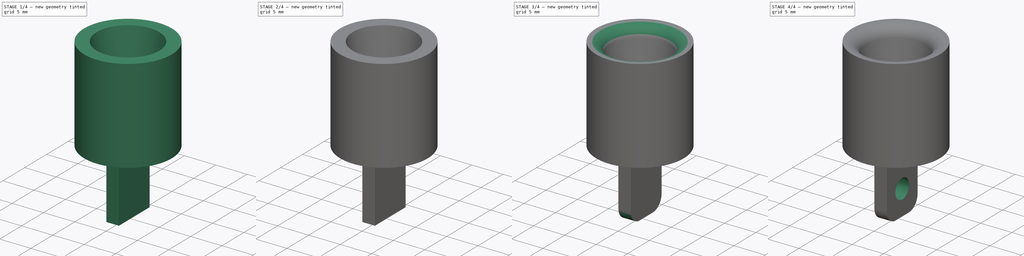
[diagram: build sequence overview — one tinted view per stage of 4, left to right]
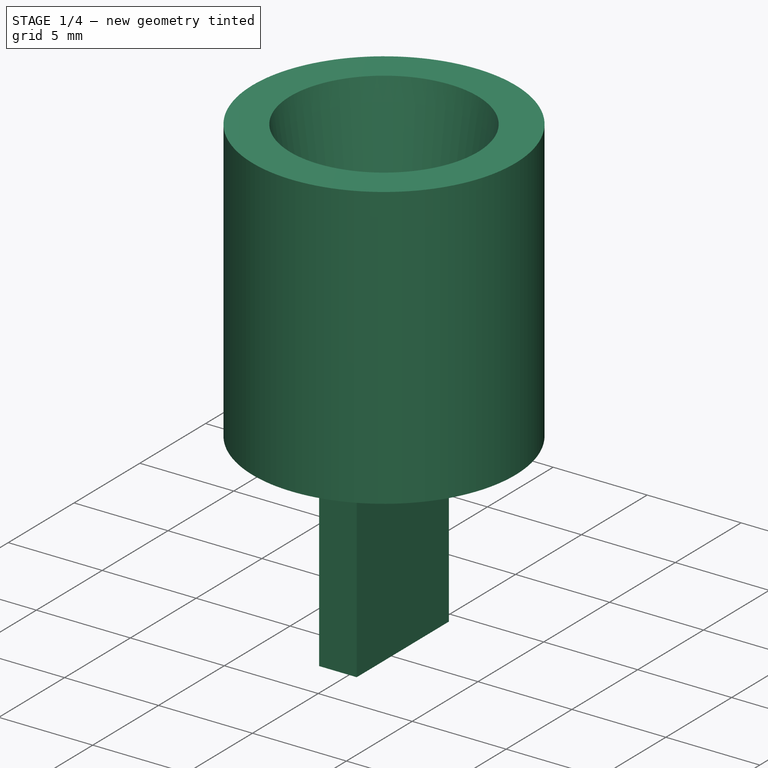
[diagram: stage 1 of 4 — iso view after this stage's code; geometry added in this stage tinted green]
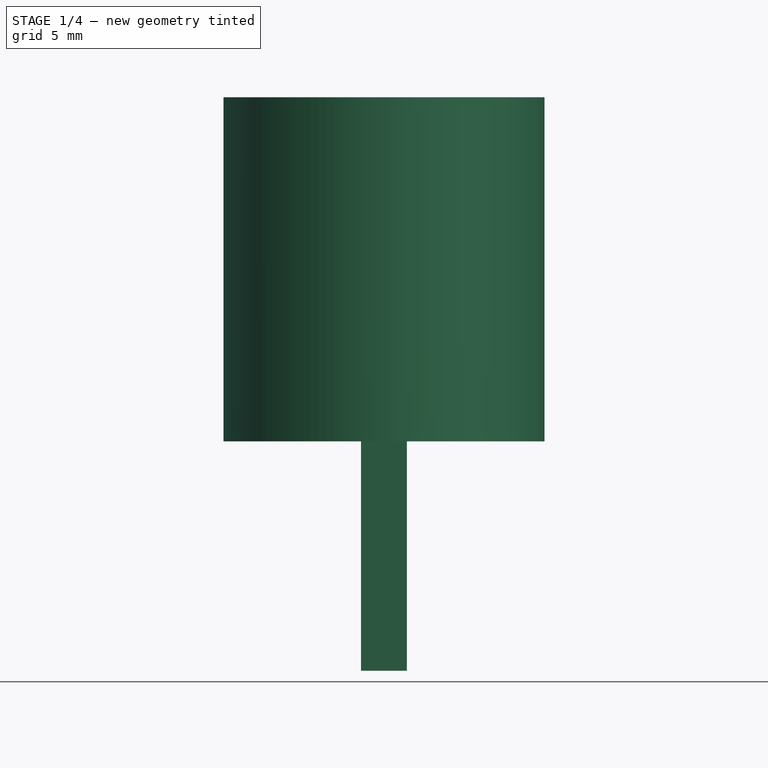
[diagram: stage 1 of 4 — front view after this stage's code; geometry added in this stage tinted green]
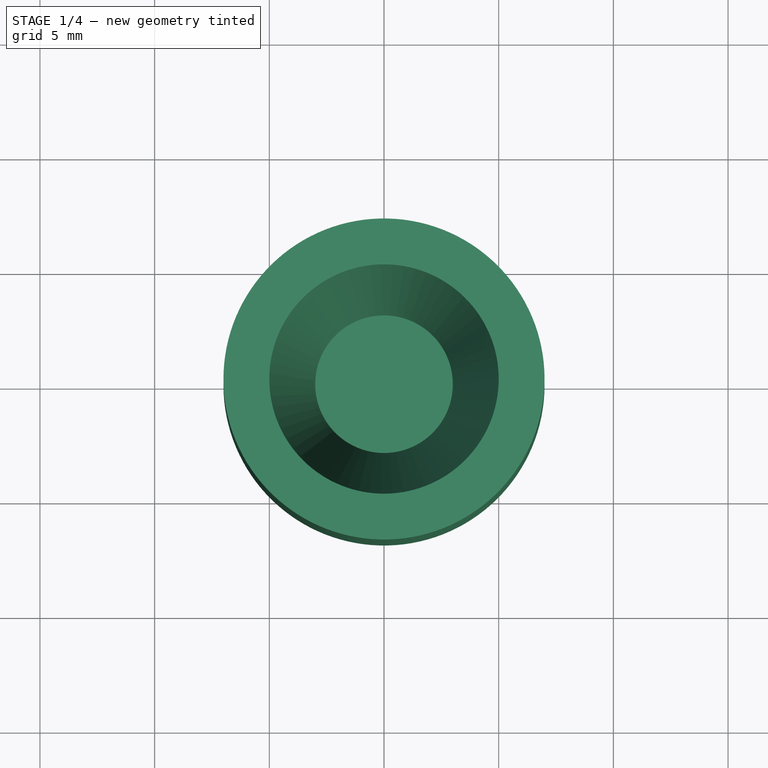
[diagram: stage 1 of 4 — top view after this stage's code; geometry added in this stage tinted green]
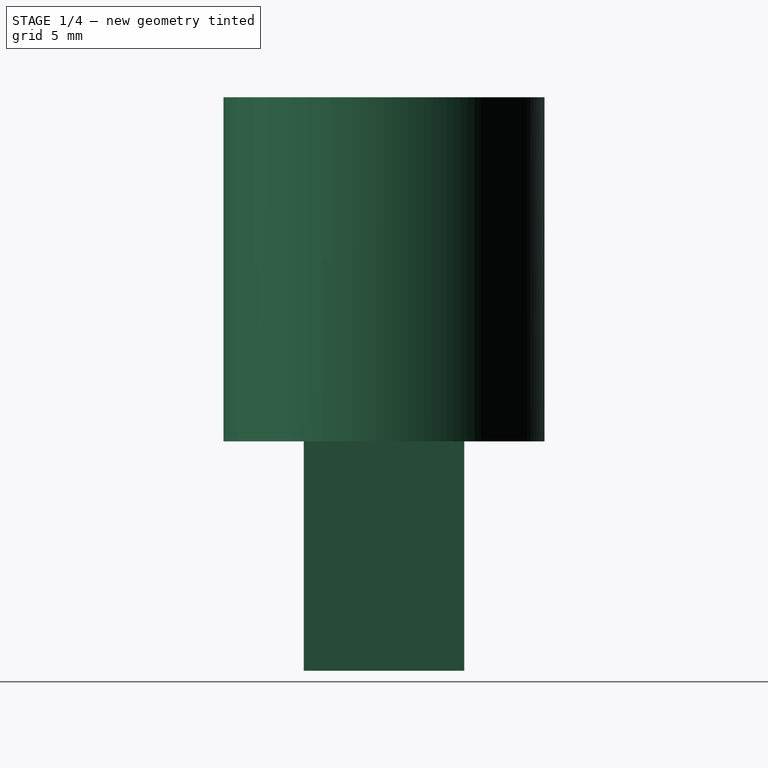
[diagram: stage 1 of 4 — right view after this stage's code; geometry added in this stage tinted green]
FCSTD DOCUMENT  (FreeCAD 0.19R24344 (Git))
Label: Lamp_shade
Comment: Shade to house a 5mm LED and shield any light dissemination outside the main cone.
License: Creative Commons Attribution-NonCommercial-ShareAlike
LicenseURL: http://creativecommons.org/licenses/by-nc-sa/4.0/
objects: PartDesign::Fillet×5, Sketcher::SketchObject×4, PartDesign::Pocket×2, PartDesign::Revolution×1, PartDesign::Pad×1, PartDesign::CoordinateSystem×1, PartDesign::Body×1
note: 24 computed .brp shape members not serialized (recipe doc carries the construction recipe); baked Part::Feature solids carry a one-line shape summary decoded from their .brp

FEATURE [Sketcher::SketchObject] Sketch
  FullyConstrained = true
  MapMode = 5
  Placement = pos=(0,0,0) rot=(1,0,0;1.5708rad)
  Support = -> [XZ_Plane]
  sketch-geometry (6):
    g0: LineSegment StartX=0 StartY=0 StartZ=0 EndX=0 EndY=2 EndZ=0
    g1: LineSegment StartX=0 StartY=2 StartZ=0 EndX=3 EndY=2 EndZ=0
    g2: LineSegment StartX=3 StartY=2 StartZ=0 EndX=5 EndY=15 EndZ=0
    g3: LineSegment StartX=5 StartY=15 StartZ=0 EndX=7 EndY=15 EndZ=0
    g4: LineSegment StartX=7 StartY=15 StartZ=0 EndX=7 EndY=0 EndZ=0
    g5: LineSegment StartX=7 StartY=0 StartZ=0 EndX=0 EndY=0 EndZ=0
  constraints (17):
    c: Coincident(g-1,g0)
    c: PointOnObject(g0,g-2)
    c: Coincident(g0,g1)
    c: Horizontal(g1)
    c: Coincident(g1,g2)
    c: Coincident(g2,g3)
    c: Horizontal(g3)
    c: Coincident(g3,g4)
    c: PointOnObject(g4,g-1)
    c: Vertical(g4)
    c: Coincident(g4,g5)
    c: Coincident(g5,g0)
    c: Distance(g1) = 3
    c: Distance(g4) = 15
    c: Distance(g5) = 7
    c: Distance(g0) = 2
    c: Distance(g3) = 2
FEATURE [PartDesign::Revolution] Revolution
  Angle = 360
  Axis = (0,2e-16,1)
  Base = (0,0,0)
  Placement = pos=(0,0,0) rot=(1,0,0;1.5708rad)
  Profile = -> Sketch
  ReferenceAxis = -> Sketch [V_Axis]
  Reversed = true
FEATURE [Sketcher::SketchObject] Sketch001
  FullyConstrained = true
  MapMode = 5
  Placement = pos=(0,0,0) rot=(1,0,0;3.14159rad)
  Support = -> [Revolution]
  sketch-geometry (4):
    g0: LineSegment StartX=-1 StartY=3.5 StartZ=0 EndX=1 EndY=3.5 EndZ=0
    g1: LineSegment StartX=1 StartY=3.5 StartZ=0 EndX=1 EndY=-3.5 EndZ=0
    g2: LineSegment StartX=1 StartY=-3.5 StartZ=0 EndX=-1 EndY=-3.5 EndZ=0
    g3: LineSegment StartX=-1 StartY=-3.5 StartZ=0 EndX=-1 EndY=3.5 EndZ=0
  constraints (10):
    c: Coincident(g0,g1)
    c: Coincident(g1,g2)
    c: Coincident(g2,g3)
    c: Coincident(g3,g0)
    c: Horizontal(g0)
    c: Vertical(g1)
    c: Distance(g0) = 2
    c: Distance(g3) = 7
    c: Symmetric(g0,g2,g-1)
    c: Symmetric(g1,g2,g-2)
FEATURE [PartDesign::Pad] Pad
  BaseFeature = -> Revolution
  Direction = (1,1,1)
  Length = 10
  Length2 = 100
  Placement = pos=(0,0,0) rot=(1,0,0;1.5708rad)
  Profile = -> Sketch001
  Type = 0
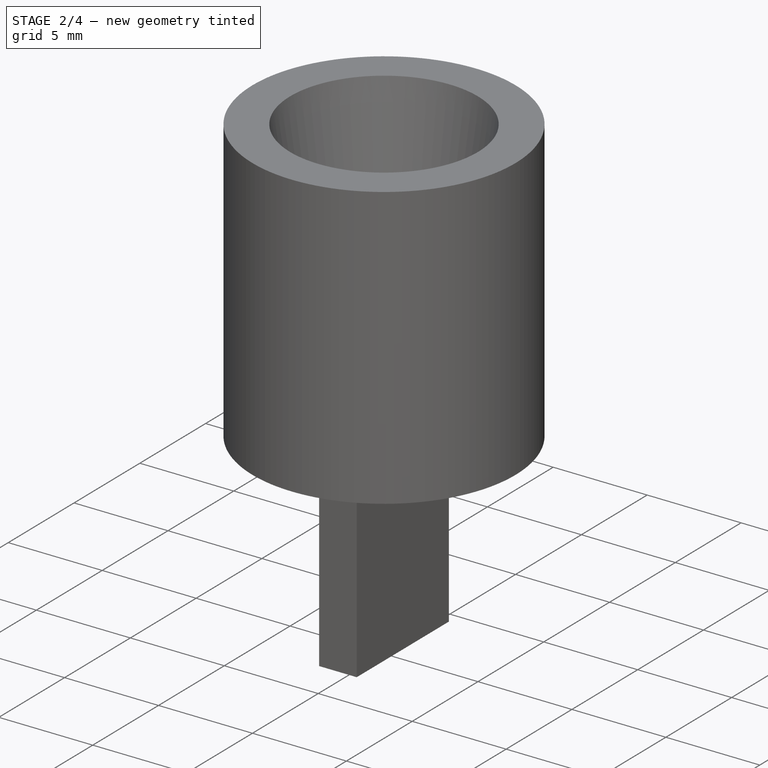
[diagram: stage 2 of 4 — iso view after this stage's code; geometry added in this stage tinted green]
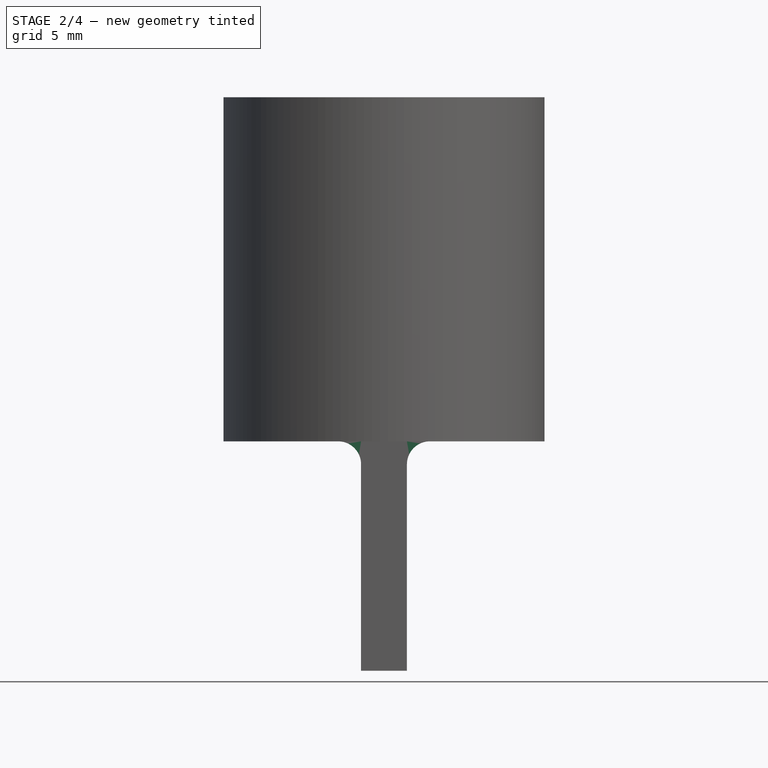
[diagram: stage 2 of 4 — front view after this stage's code; geometry added in this stage tinted green]
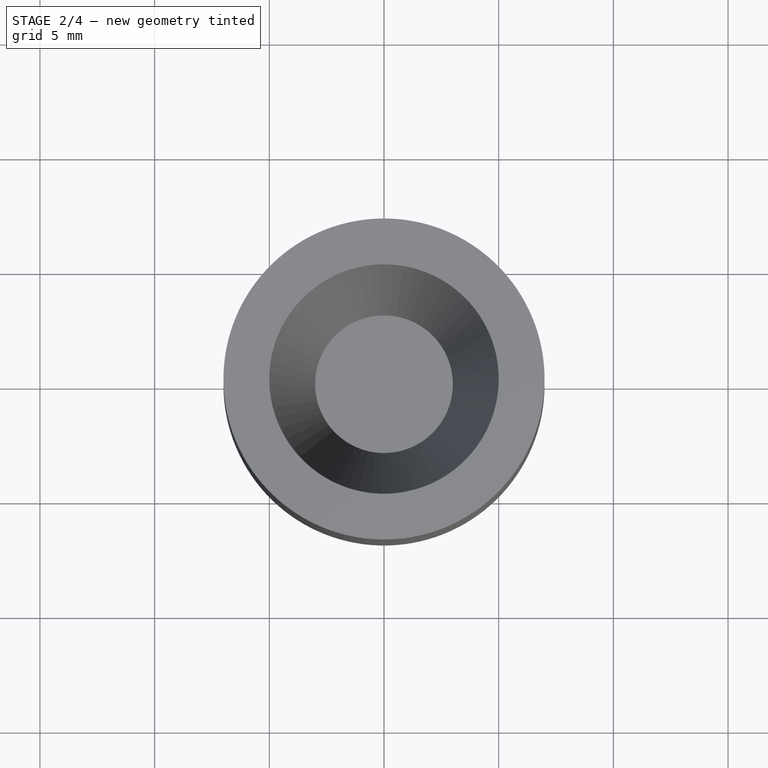
[diagram: stage 2 of 4 — top view after this stage's code; geometry added in this stage tinted green]
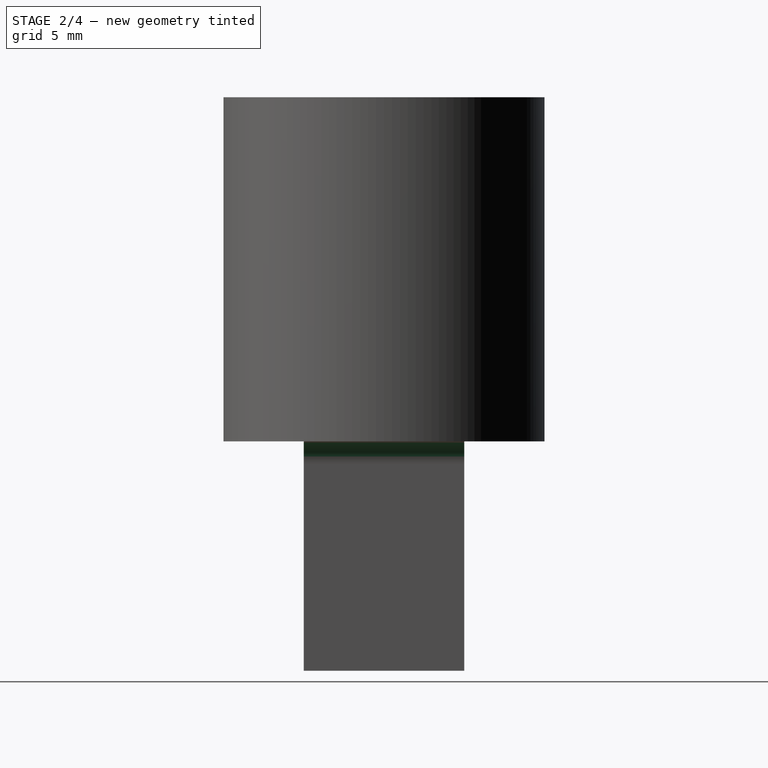
[diagram: stage 2 of 4 — right view after this stage's code; geometry added in this stage tinted green]
FEATURE [PartDesign::Fillet] Fillet
  Base = -> Pad [Edge9]
  BaseFeature = -> Pad
  Placement = pos=(0,0,0) rot=(1,0,0;1.5708rad)
  Radius = 1
  SupportTransform = false
FEATURE [PartDesign::Fillet] Fillet001
  Base = -> Fillet [Edge4]
  BaseFeature = -> Fillet
  Placement = pos=(0,0,0) rot=(1,0,0;1.5708rad)
  Radius = 1
  SupportTransform = false
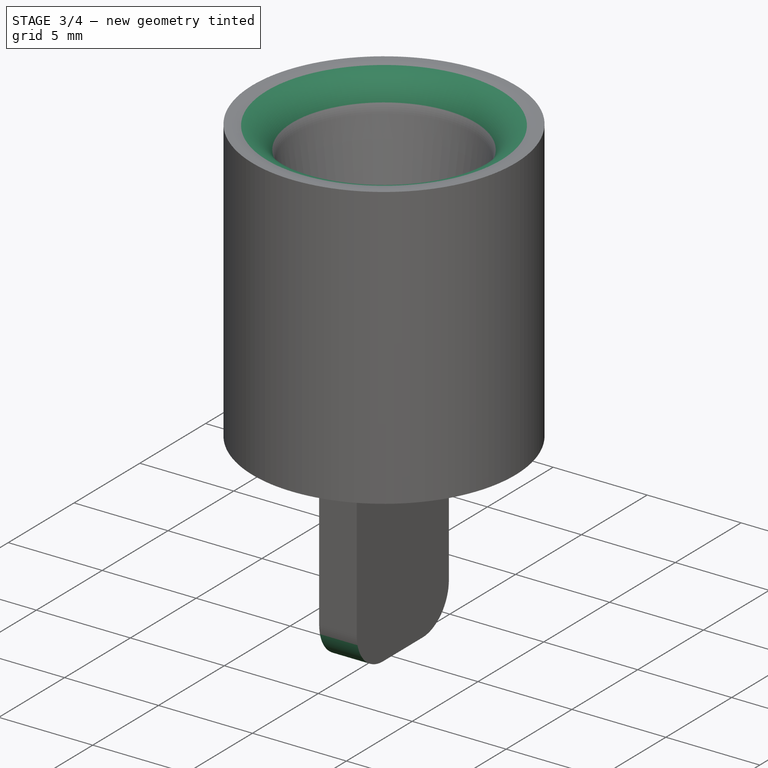
[diagram: stage 3 of 4 — iso view after this stage's code; geometry added in this stage tinted green]
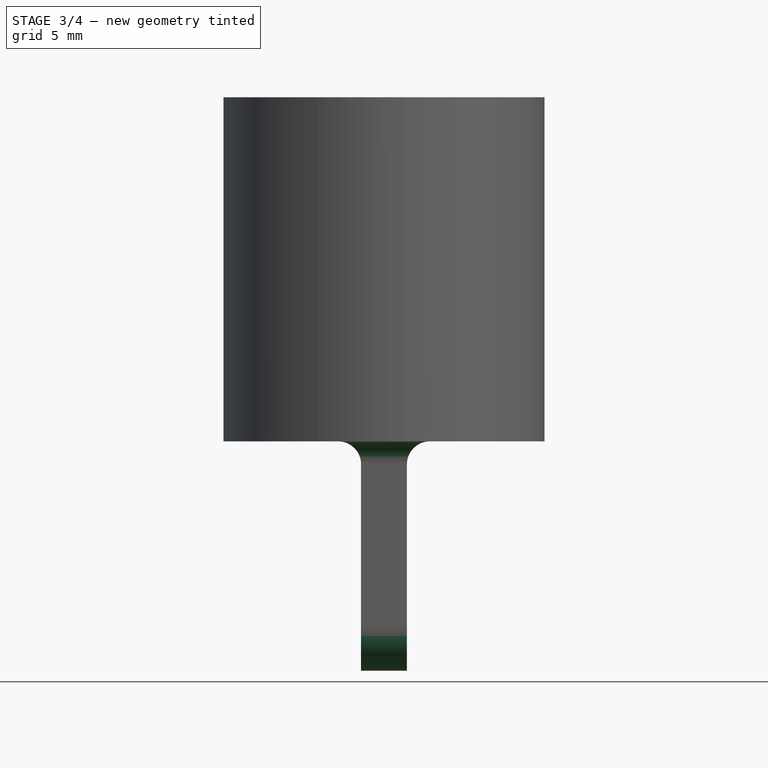
[diagram: stage 3 of 4 — front view after this stage's code; geometry added in this stage tinted green]
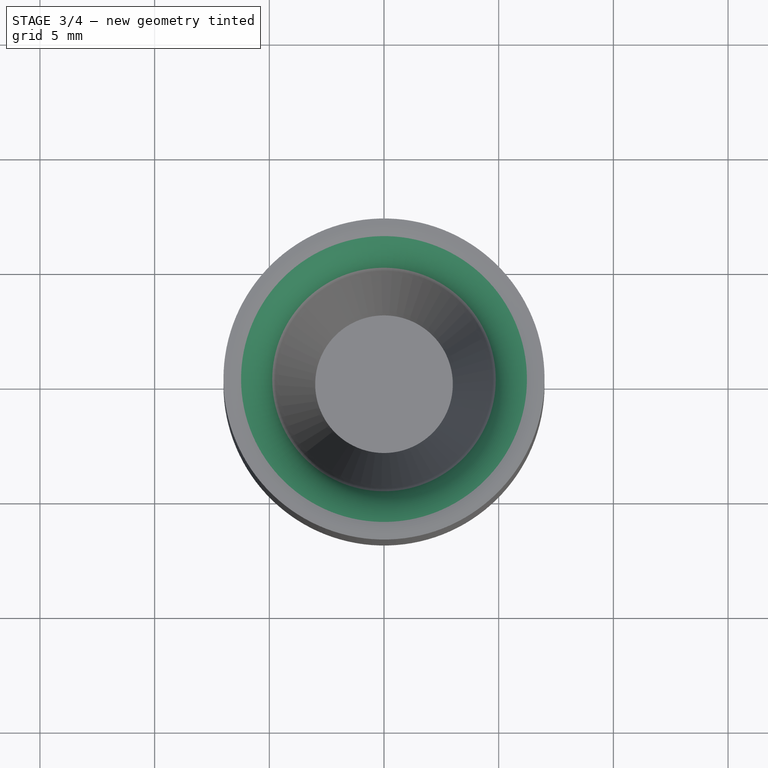
[diagram: stage 3 of 4 — top view after this stage's code; geometry added in this stage tinted green]
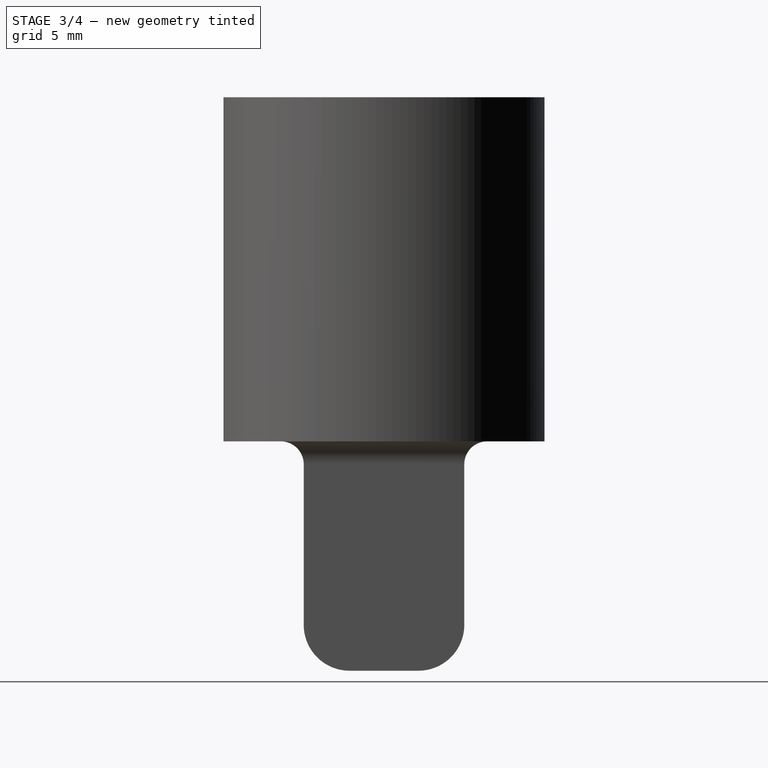
[diagram: stage 3 of 4 — right view after this stage's code; geometry added in this stage tinted green]
FEATURE [PartDesign::Fillet] Fillet002
  Base = -> Fillet001 [Edge7]
  BaseFeature = -> Fillet001
  Placement = pos=(0,0,0) rot=(1,0,0;1.5708rad)
  Radius = 1
  SupportTransform = false
FEATURE [PartDesign::Fillet] Fillet003
  Base = -> Fillet002 [Edge6]
  BaseFeature = -> Fillet002
  Placement = pos=(0,0,0) rot=(1,0,0;1.5708rad)
  Radius = 1
  SupportTransform = false
FEATURE [PartDesign::Fillet] Fillet004
  Base = -> Fillet003 [Edge36,Edge32,Edge34]
  BaseFeature = -> Fillet003
  Placement = pos=(0,0,0) rot=(1,0,0;1.5708rad)
  Radius = 2
  SupportTransform = false
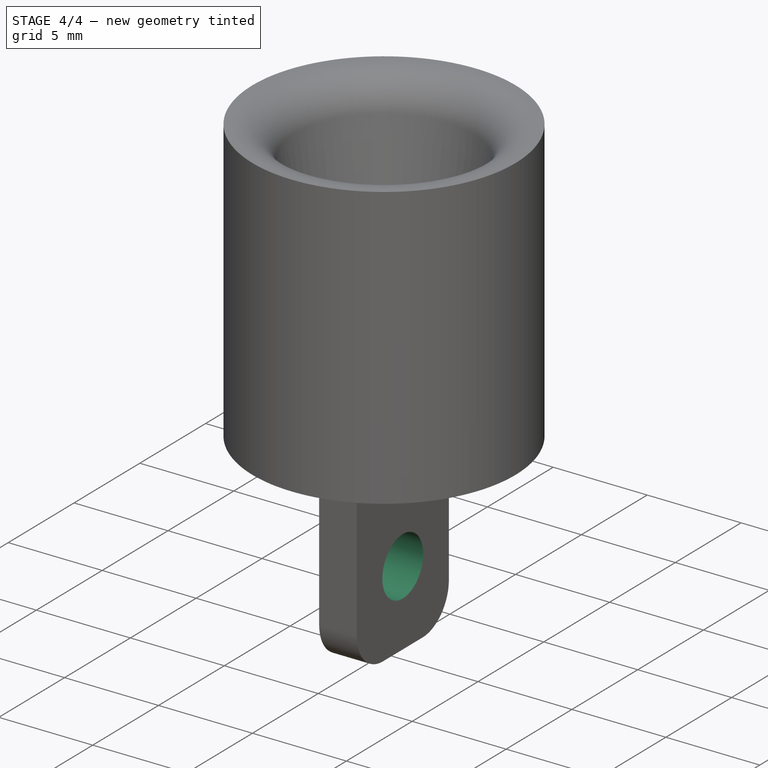
[diagram: stage 4 of 4 — iso view after this stage's code; geometry added in this stage tinted green]
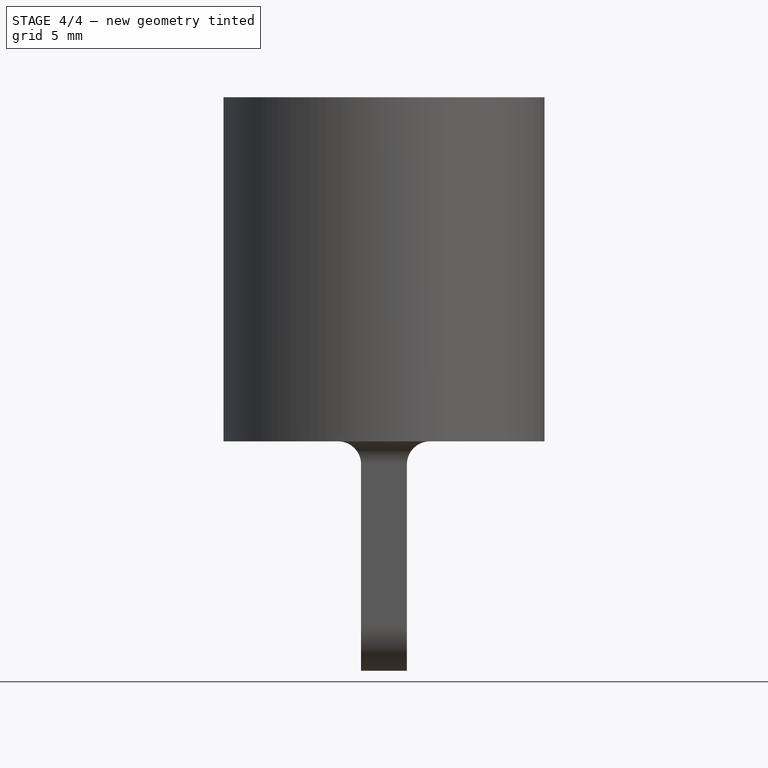
[diagram: stage 4 of 4 — front view after this stage's code; geometry added in this stage tinted green]
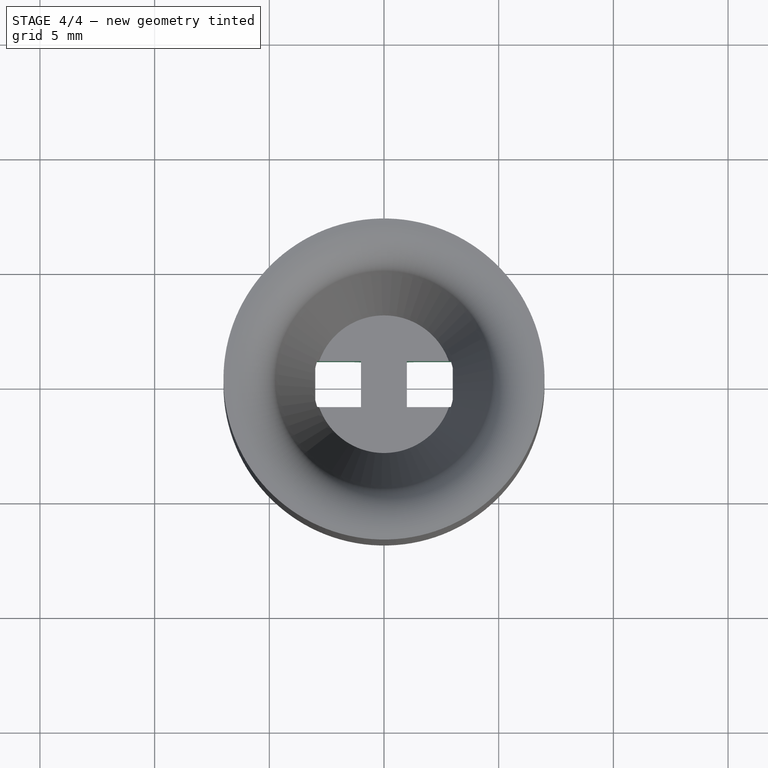
[diagram: stage 4 of 4 — top view after this stage's code; geometry added in this stage tinted green]
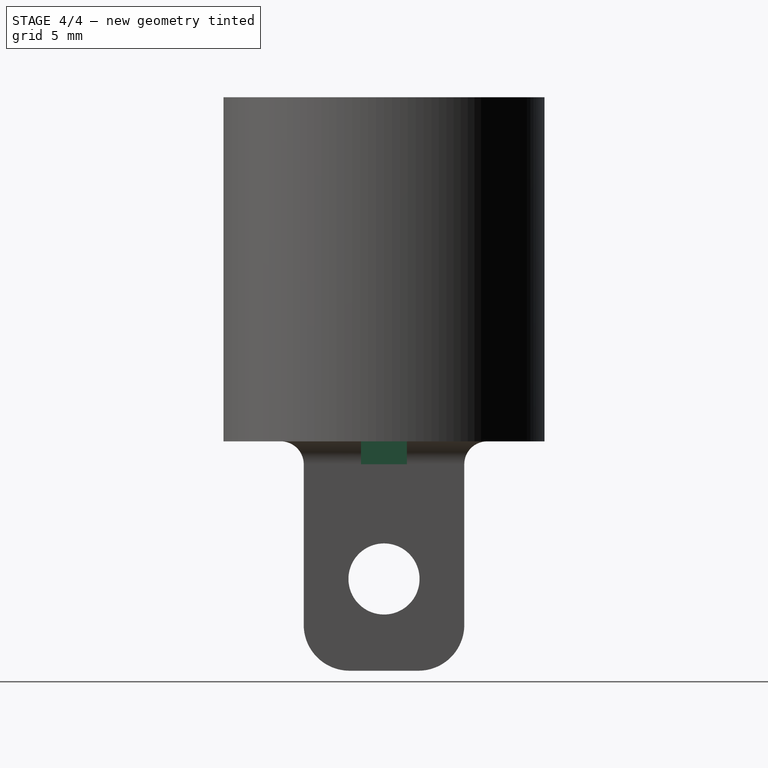
[diagram: stage 4 of 4 — right view after this stage's code; geometry added in this stage tinted green]
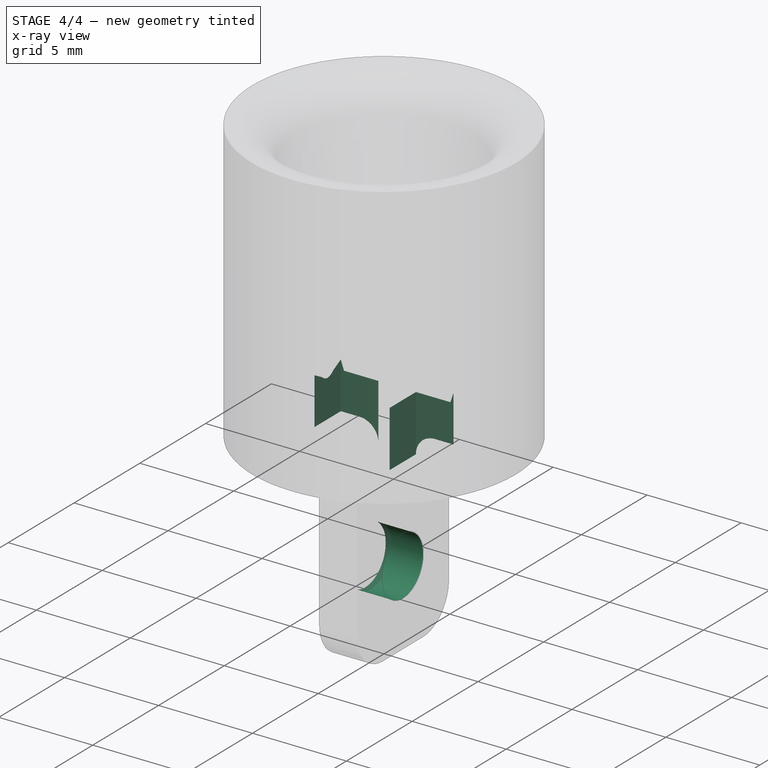
[diagram: stage 4 of 4 — x-ray composite at the iso view; earlier geometry ghosted, this stage's added geometry solid]
FEATURE [Sketcher::SketchObject] Sketch002
  FullyConstrained = false
  MapMode = 5
  Placement = pos=(-1,0,0) rot=(0.707107,0,-0.707107;3.14159rad)
  sketch-geometry (1):
    g0: Circle CenterX=6 CenterY=0 CenterZ=0 NormalX=0 NormalY=0 NormalZ=1 AngleXU=0 Radius=1.55
  constraints (2):
    c: PointOnObject(g0,g-1)
    c: Diameter(g0) = 3.1
FEATURE [PartDesign::Pocket] Pocket
  BaseFeature = -> Fillet004
  Length = 5
  Length2 = 100
  Placement = pos=(0,0,0) rot=(1,0,0;1.5708rad)
  Profile = -> Sketch002
  Type = 0
FEATURE [Sketcher::SketchObject] Sketch003
  FullyConstrained = true
  MapMode = 5
  Placement = pos=(0,0,0) rot=(1,0,0;3.14159rad)
  Support = -> [Pocket]
  sketch-geometry (8):
    g0: LineSegment StartX=-3 StartY=1 StartZ=0 EndX=-1 EndY=1 EndZ=0
    g1: LineSegment StartX=-1 StartY=1 StartZ=0 EndX=-1 EndY=-1 EndZ=0
    g2: LineSegment StartX=-1 StartY=-1 StartZ=0 EndX=-3 EndY=-1 EndZ=0
    g3: LineSegment StartX=-3 StartY=-1 StartZ=0 EndX=-3 EndY=1 EndZ=0
    g4: LineSegment StartX=1 StartY=1 StartZ=0 EndX=3 EndY=1 EndZ=0
    g5: LineSegment StartX=3 StartY=1 StartZ=0 EndX=3 EndY=-1 EndZ=0
    g6: LineSegment StartX=3 StartY=-1 StartZ=0 EndX=1 EndY=-1 EndZ=0
    g7: LineSegment StartX=1 StartY=-1 StartZ=0 EndX=1 EndY=1 EndZ=0
  constraints (21):
    c: Coincident(g0,g1)
    c: Coincident(g1,g2)
    c: Coincident(g2,g3)
    c: Coincident(g3,g0)
    c: Horizontal(g0)
    c: Horizontal(g2)
    c: Vertical(g1)
    c: Coincident(g4,g5)
    c: Coincident(g5,g6)
    c: Coincident(g6,g7)
    c: Coincident(g7,g4)
    c: Horizontal(g4)
    c: Vertical(g7)
    c: Distance(g0) = 2
    c: Distance(g3) = 2
    c: Equal(g1,g7)
    c: Equal(g0,g4)
    c: DistanceX(g1,g6) = 2
    c: Symmetric(g0,g2,g-1)
    c: Symmetric(g4,g5,g-1)
    c: Symmetric(g5,g2,g-2)
FEATURE [PartDesign::Pocket] Pocket001
  BaseFeature = -> Pocket
  Length = 5
  Length2 = 100
  Midplane = true
  Placement = pos=(0,0,0) rot=(1,0,0;1.5708rad)
  Profile = -> Sketch003
  Type = 0
FEATURE [PartDesign::CoordinateSystem] LCS_Shade
  AttacherType = Attacher::AttachEngine3D
  MapMode = 11
  Placement = pos=(1,-7e-16,-6) rot=(-0.57735,0.57735,0.57735;4.18879rad)
  Support = -> [Pocket001]
FEATURE [PartDesign::Body] Body  label="lamp_shade"
  Group = -> [Sketch,Revolution,Sketch001,Pad,Fillet,Fillet001,Fillet002,Fillet003,Fillet004,Sketch002,Pocket,Sketch003,Pocket001,LCS_Shade]
  Origin = -> Origin
  Tip = -> Pocket001
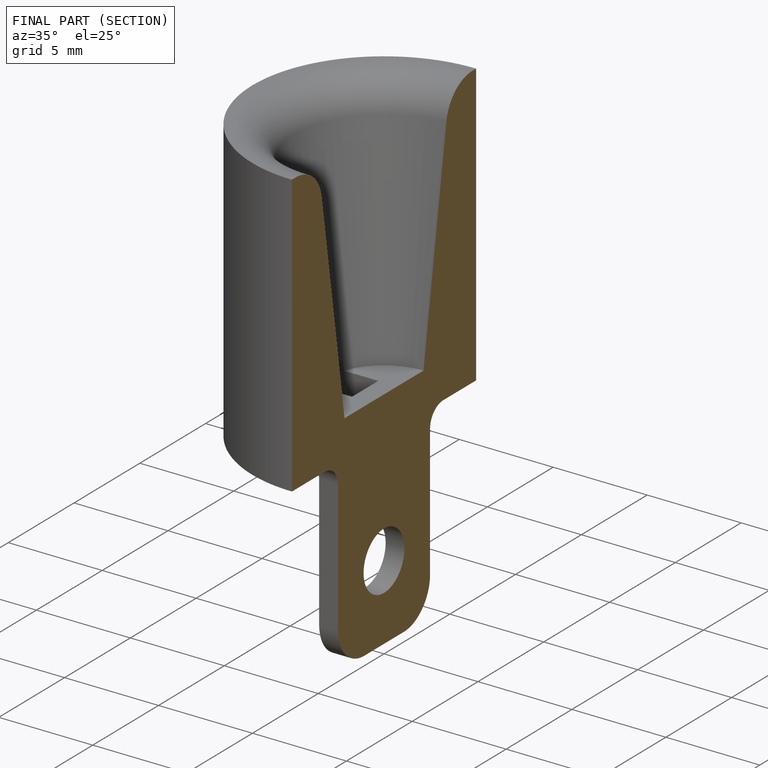
[diagram: finished part — half-section view (interior)]
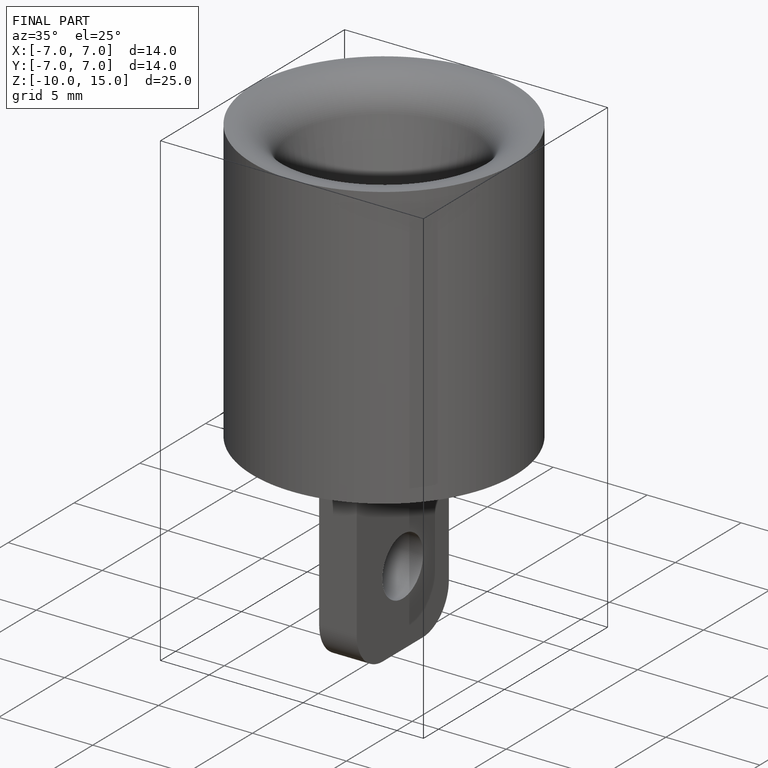
[diagram: finished part — iso view with bounding-box wireframe]
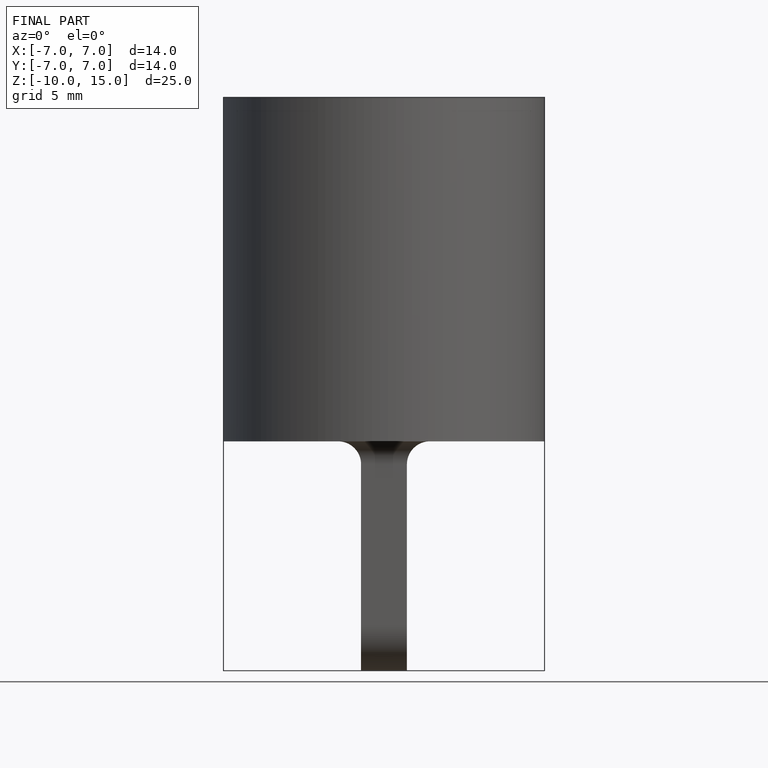
[diagram: finished part — front view with bounding-box wireframe]
